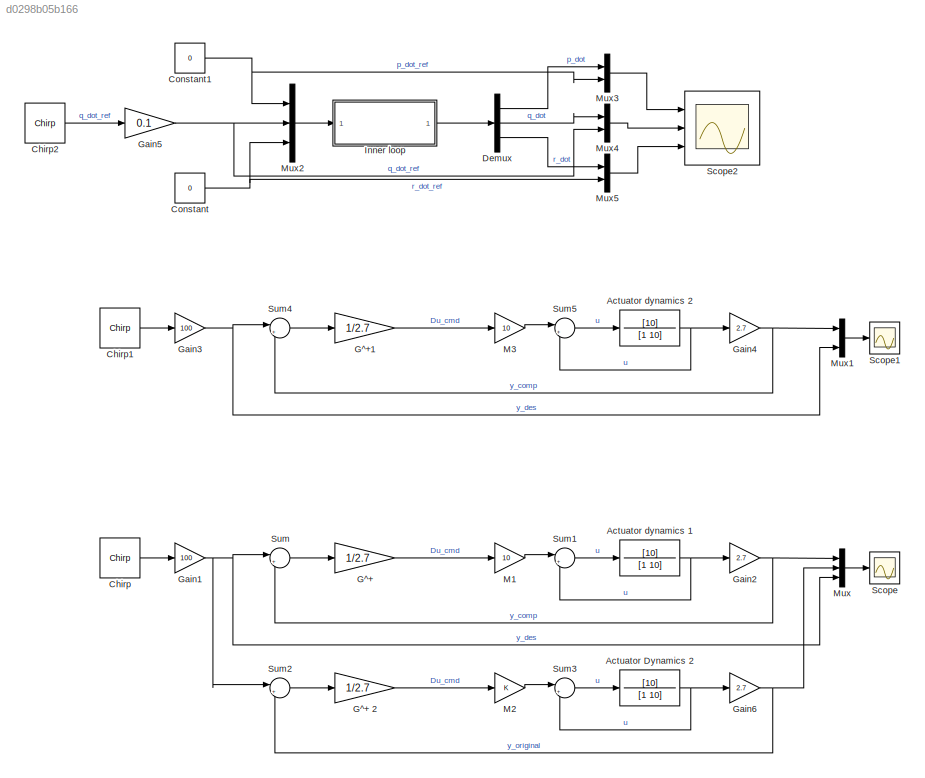
MODEL slx_d0298b05b166
KIND model
CONFIG AbsTol = auto
CONFIG EnableMultiTasking = off
CONFIG FixedStep = auto
CONFIG MaxStep = auto
CONFIG MinStep = auto
CONFIG RelTol = 1e-3
CONFIG SampleTimeConstraint = Unconstrained
CONFIG SolverName = VariableStepAuto
CONFIG StartTime = 0.0
CONFIG StopTime = 10
BLOCK [TransferFcn] Actuator Dynamics 2
  Denominator = [1 10]
  Numerator = [10]
BLOCK [TransferFcn] Actuator dynamics 1
  Denominator = [1 10]
  Numerator = [10]
BLOCK [TransferFcn] Actuator dynamics 2
  Denominator = [1 10]
  Numerator = [10]
BLOCK [Reference] Chirp  REF=dspsrcs4/Chirp
  Ports = [0, 1]
  SourceBlock = dspsrcs4/Chirp
  SourceProductBaseCode = DS
  SourceType = Chirp
BLOCK [Reference] Chirp1  REF=dspsrcs4/Chirp
  Ports = [0, 1]
  SourceBlock = dspsrcs4/Chirp
  SourceProductBaseCode = DS
  SourceType = Chirp
BLOCK [Reference] Chirp2  REF=dspsrcs4/Chirp
  Ports = [0, 1]
  SourceBlock = dspsrcs4/Chirp
  SourceProductBaseCode = DS
  SourceType = Chirp
BLOCK [Constant] Constant
  Value = 0
BLOCK [Constant] Constant1
  Value = 0
BLOCK [Demux] Demux
  Outputs = 3
  Ports = [1, 3]
BLOCK [Gain] G^+
  Gain = 1/2.7
BLOCK [Gain] G^+ 2
  Gain = 1/2.7
BLOCK [Gain] G^+1
  Gain = 1/2.7
BLOCK [Gain] Gain1
  Gain = 100
BLOCK [Gain] Gain2
  Gain = 2.7
BLOCK [Gain] Gain3
  Gain = 100
BLOCK [Gain] Gain4
  Gain = 2.7
BLOCK [Gain] Gain5
  Gain = 0.1
BLOCK [Gain] Gain6
  Gain = 2.7
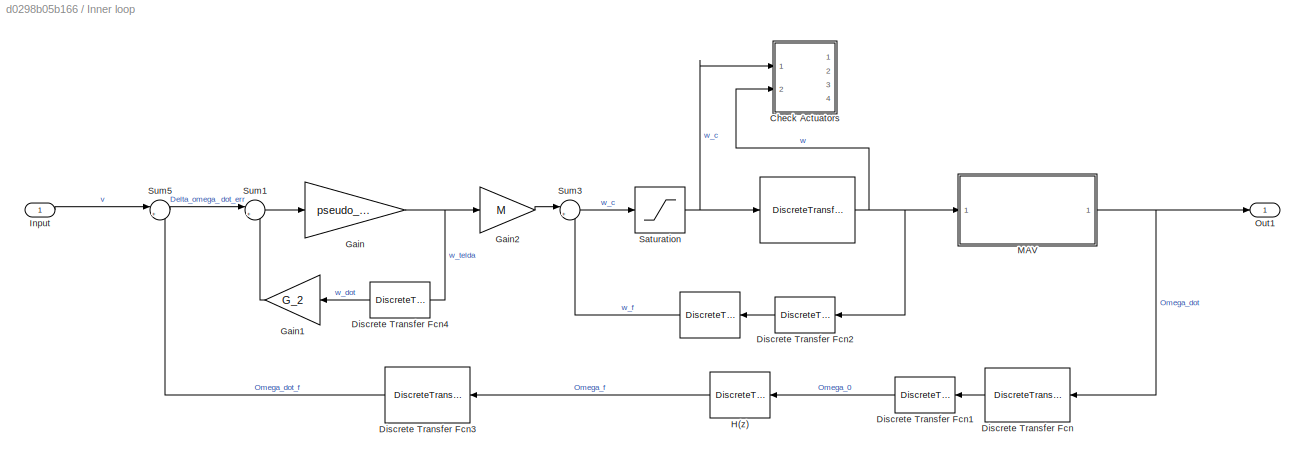
BLOCK [SubSystem] Inner loop
  Ports = [1, 1]
  RequestExecContextInheritance = off
BLOCK [DiscreteTransferFcn] Inner loop/ 
  DenCoefDataTypeStr = int16
  Denominator = H_z_den
  InputPortMap = u0
  Numerator = H_z_num
  Ports = [1, 1]
BLOCK [DiscreteTransferFcn] Inner loop/  
  DenCoefDataTypeStr = int16
  Denominator = mot_den
  InputPortMap = u0
  Numerator = mot_num
  Ports = [1, 1]
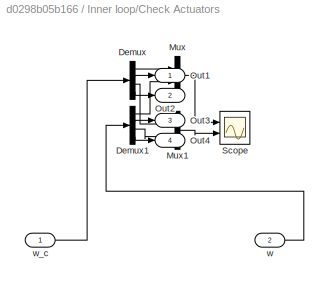
BLOCK [SubSystem] Inner loop/Check Actuators
  Ports = [2, 4]
  RequestExecContextInheritance = off
BLOCK [Demux] Inner loop/Check Actuators/Demux
  Ports = [1, 4]
BLOCK [Demux] Inner loop/Check Actuators/Demux1
  Ports = [1, 4]
BLOCK [Mux] Inner loop/Check Actuators/Mux
  DisplayOption = bar
  Inputs = 2
  Ports = [2, 1]
BLOCK [Mux] Inner loop/Check Actuators/Mux1
  DisplayOption = bar
  Inputs = 2
  Ports = [2, 1]
BLOCK [Outport] Inner loop/Check Actuators/Out1
BLOCK [Outport] Inner loop/Check Actuators/Out2
  Port = 2
BLOCK [Outport] Inner loop/Check Actuators/Out3
  Port = 3
BLOCK [Outport] Inner loop/Check Actuators/Out4
  Port = 4
BLOCK [Scope] Inner loop/Check Actuators/Scope
  Floating = off
  NumInputPorts = 2
  Ports = [2]
  ScopeSpecificationString = Simulink.scopes.TimeScopeBlockCfg('CurrentConfiguration', extmgr.ConfigurationSet(extmgr.Configuration('Core','General UI',true),extmgr.Configuration('Core','Source UI',true),extmgr.Configuration('Sources','WiredSimulink',true,'DataLoggingVariableName','ScopeData3'),extmgr.Configuration('Visuals','Time Domain',true,'SerializedDisplays',{struct('MinYLimReal','-0.79905','MaxYLimReal','7.19143','YLab...<+2061ch>
BLOCK [Inport] Inner loop/Check Actuators/w
  Port = 2
BLOCK [Inport] Inner loop/Check Actuators/w_c
BLOCK [DiscreteTransferFcn] Inner loop/Discrete Transfer Fcn
  Denominator = [1 -1]
  InputPortMap = u0
  NameLocation = top
  Numerator = [Ts 0]
  Ports = [1, 1]
BLOCK [DiscreteTransferFcn] Inner loop/Discrete Transfer Fcn1
  Denominator = [1 0]
  InputPortMap = u0
  NameLocation = top
  Ports = [1, 1]
BLOCK [DiscreteTransferFcn] Inner loop/Discrete Transfer Fcn2
  Denominator = [1 0]
  InputPortMap = u0
  NameLocation = top
  Ports = [1, 1]
BLOCK [DiscreteTransferFcn] Inner loop/Discrete Transfer Fcn3
  Denominator = [Ts 0]
  InputPortMap = u0
  Numerator = [1 -1]
  Ports = [1, 1]
BLOCK [DiscreteTransferFcn] Inner loop/Discrete Transfer Fcn4
  Denominator = [1 0]
  InputPortMap = u0
  NameLocation = top
  Ports = [1, 1]
BLOCK [Gain] Inner loop/Gain
  Gain = pseudo_g12
  Multiplication = Matrix(K*u)
BLOCK [Gain] Inner loop/Gain1
  Gain = G_2
  Multiplication = Matrix(K*u)
  NameLocation = top
BLOCK [Gain] Inner loop/Gain2
  Gain = M
BLOCK [DiscreteTransferFcn] Inner loop/H(z)
  DenCoefDataTypeStr = int16
  Denominator = H_z_den
  InputPortMap = u0
  Numerator = H_z_num
  Ports = [1, 1]
BLOCK [Inport] Inner loop/Input
  PortDimensions = 3
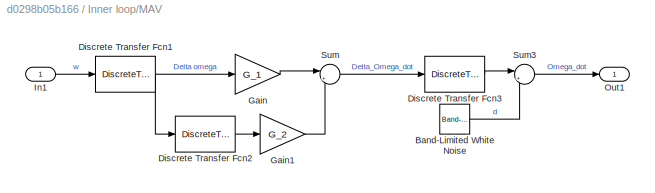
BLOCK [SubSystem] Inner loop/MAV
  Ports = [1, 1]
  RequestExecContextInheritance = off
BLOCK [Reference] Inner loop/MAV/Band-Limited White Noise  REF=simulink/Sources/Band-Limited
White Noise
  Ports = [0, 1]
  SourceBlock = simulink/Sources/Band-Limited\nWhite Noise
  SourceProductBaseCode = SL
  SourceType = Band-Limited White Noise.
BLOCK [DiscreteTransferFcn] Inner loop/MAV/Discrete Transfer Fcn1
  Denominator = [1 0]
  InputPortMap = u0
  Numerator = [1 -1]
  Ports = [1, 1]
BLOCK [DiscreteTransferFcn] Inner loop/MAV/Discrete Transfer Fcn2
  Denominator = [1 0]
  InputPortMap = u0
  Numerator = [1 -1]
  Ports = [1, 1]
BLOCK [DiscreteTransferFcn] Inner loop/MAV/Discrete Transfer Fcn3
  Denominator = [1 -1]
  InputPortMap = u0
  Numerator = [1 0]
  Ports = [1, 1]
BLOCK [Gain] Inner loop/MAV/Gain
  Gain = G_1
  Multiplication = Matrix(K*u)
BLOCK [Gain] Inner loop/MAV/Gain1
  Gain = G_2
  Multiplication = Matrix(K*u)
BLOCK [Inport] Inner loop/MAV/In1
  PortDimensions = 4
BLOCK [Outport] Inner loop/MAV/Out1
  PortDimensions = 3
BLOCK [Sum] Inner loop/MAV/Sum
  Inputs = |++
  Ports = [2, 1]
BLOCK [Sum] Inner loop/MAV/Sum3
  Inputs = |++
  Ports = [2, 1]
BLOCK [Outport] Inner loop/Out1
  PortDimensions = 3
BLOCK [Saturate] Inner loop/Saturation
  LowerLimit = 0
  UpperLimit = 150*Hz2rads
BLOCK [Sum] Inner loop/Sum1
  Inputs = |+-
  Ports = [2, 1]
BLOCK [Sum] Inner loop/Sum3
  Inputs = |++
  Ports = [2, 1]
BLOCK [Sum] Inner loop/Sum5
  Inputs = |+-
  Ports = [2, 1]
BLOCK [Gain] M1
  Gain = 10
BLOCK [Gain] M2
BLOCK [Gain] M3
  Gain = 10
BLOCK [Mux] Mux
  DisplayOption = bar
  Inputs = 3
  Ports = [3, 1]
BLOCK [Mux] Mux1
  DisplayOption = bar
  Inputs = 3
  Ports = [3, 1]
BLOCK [Mux] Mux2
  DisplayOption = bar
  Inputs = 3
  Ports = [3, 1]
BLOCK [Mux] Mux3
  DisplayOption = bar
  Inputs = 2
  Ports = [2, 1]
BLOCK [Mux] Mux4
  DisplayOption = bar
  Inputs = 2
  Ports = [2, 1]
BLOCK [Mux] Mux5
  DisplayOption = bar
  Inputs = 2
  Ports = [2, 1]
BLOCK [Scope] Scope
  Floating = off
  NumInputPorts = 1
  Ports = [1]
  ScopeSpecificationString = Simulink.scopes.TimeScopeBlockCfg('CurrentConfiguration', extmgr.ConfigurationSet(extmgr.Configuration('Core','General UI',true),extmgr.Configuration('Core','Source UI',true),extmgr.Configuration('Sources','WiredSimulink',true),extmgr.Configuration('Visuals','Time Domain',true,'SerializedDisplays',{struct('MinYLimReal','-125.00000','MaxYLimReal','125.00000','YLabelReal','','MinYLimMag',' 0.00000',...<+1433ch>
BLOCK [Scope] Scope1
  Floating = off
  NumInputPorts = 1
  Ports = [1]
  ScopeSpecificationString = Simulink.scopes.TimeScopeBlockCfg('CurrentConfiguration', extmgr.ConfigurationSet(extmgr.Configuration('Core','General UI',true),extmgr.Configuration('Core','Source UI',true),extmgr.Configuration('Sources','WiredSimulink',true,'DataLoggingVariableName','ScopeData1'),extmgr.Configuration('Visuals','Time Domain',true,'SerializedDisplays',{struct('MinYLimReal','-125.00000','MaxYLimReal','125.00000','...<+1471ch>
BLOCK [Scope] Scope2
  Floating = off
  NumInputPorts = 3
  Ports = [3]
  ScopeSpecificationString = Simulink.scopes.TimeScopeBlockCfg('CurrentConfiguration', extmgr.ConfigurationSet(extmgr.Configuration('Core','General UI',true),extmgr.Configuration('Core','Source UI',true),extmgr.Configuration('Sources','WiredSimulink',true,'DataLoggingVariableName','ScopeData2'),extmgr.Configuration('Visuals','Time Domain',true,'SerializedDisplays',{struct('MinYLimReal','-0.29838','MaxYLimReal','0.32508','YLab...<+2797ch>
BLOCK [Sum] Sum
  Inputs = |+-
  Ports = [2, 1]
BLOCK [Sum] Sum1
  Inputs = |++
  Ports = [2, 1]
BLOCK [Sum] Sum2
  Inputs = |+-
  Ports = [2, 1]
BLOCK [Sum] Sum3
  Inputs = |++
  Ports = [2, 1]
BLOCK [Sum] Sum4
  Inputs = |+-
  Ports = [2, 1]
BLOCK [Sum] Sum5
  Inputs = |++
  Ports = [2, 1]
NET Actuator Dynamics 2:1 -> Gain6:1, Sum3:2
NET Actuator dynamics 1:1 -> Gain2:1, Sum1:2
NET Actuator dynamics 2:1 -> Gain4:1, Sum5:2
LINE Chirp1:1 -> Gain3:1
LINE Chirp2:1 -> Gain5:1
LINE Chirp:1 -> Gain1:1
NET Constant1:1 -> Mux2:1, Mux3:2
NET Constant:1 -> Mux2:3, Mux5:2
LINE Demux:1 -> Mux3:1
LINE Demux:2 -> Mux4:1
LINE Demux:3 -> Mux5:1
LINE G^+ 2:1 -> M2:1
LINE G^+1:1 -> M3:1
LINE G^+:1 -> M1:1
NET Gain1:1 -> Mux:3, Sum2:1, Sum:1
NET Gain2:1 -> Mux:1, Sum:2
NET Gain3:1 -> Mux1:3, Sum4:1
NET Gain4:1 -> Mux1:1, Sum4:2
NET Gain5:1 -> Mux2:2, Mux4:2
NET Gain6:1 -> Mux:2, Sum2:2
NET Inner loop/  :1 -> Inner loop/Check Actuators:2, Inner loop/Discrete Transfer Fcn2:1, Inner loop/MAV:1
LINE Inner loop/ :1 -> Inner loop/Sum3:2
LINE Inner loop/Check Actuators/Demux1:1 -> Inner loop/Check Actuators/Mux:2
LINE Inner loop/Check Actuators/Demux1:2 -> Inner loop/Check Actuators/Out3:1
LINE Inner loop/Check Actuators/Demux1:3 -> Inner loop/Check Actuators/Mux1:2
LINE Inner loop/Check Actuators/Demux1:4 -> Inner loop/Check Actuators/Out4:1
LINE Inner loop/Check Actuators/Demux:1 -> Inner loop/Check Actuators/Mux:1
LINE Inner loop/Check Actuators/Demux:2 -> Inner loop/Check Actuators/Out1:1
LINE Inner loop/Check Actuators/Demux:3 -> Inner loop/Check Actuators/Mux1:1
LINE Inner loop/Check Actuators/Demux:4 -> Inner loop/Check Actuators/Out2:1
LINE Inner loop/Check Actuators/Mux1:1 -> Inner loop/Check Actuators/Scope:2
LINE Inner loop/Check Actuators/Mux:1 -> Inner loop/Check Actuators/Scope:1
LINE Inner loop/Check Actuators/w:1 -> Inner loop/Check Actuators/Demux1:1
LINE Inner loop/Check Actuators/w_c:1 -> Inner loop/Check Actuators/Demux:1
LINE Inner loop/Discrete Transfer Fcn1:1 -> Inner loop/H(z):1
LINE Inner loop/Discrete Transfer Fcn2:1 -> Inner loop/ :1
LINE Inner loop/Discrete Transfer Fcn3:1 -> Inner loop/Sum5:2
LINE Inner loop/Discrete Transfer Fcn4:1 -> Inner loop/Gain1:1
LINE Inner loop/Discrete Transfer Fcn:1 -> Inner loop/Discrete Transfer Fcn1:1
LINE Inner loop/Gain1:1 -> Inner loop/Sum1:2
LINE Inner loop/Gain2:1 -> Inner loop/Sum3:1
NET Inner loop/Gain:1 -> Inner loop/Discrete Transfer Fcn4:1, Inner loop/Gain2:1
LINE Inner loop/H(z):1 -> Inner loop/Discrete Transfer Fcn3:1
LINE Inner loop/Input:1 -> Inner loop/Sum5:1
LINE Inner loop/MAV/Band-Limited White Noise:1 -> Inner loop/MAV/Sum3:2
NET Inner loop/MAV/Discrete Transfer Fcn1:1 -> Inner loop/MAV/Discrete Transfer Fcn2:1, Inner loop/MAV/Gain:1
LINE Inner loop/MAV/Discrete Transfer Fcn2:1 -> Inner loop/MAV/Gain1:1
LINE Inner loop/MAV/Discrete Transfer Fcn3:1 -> Inner loop/MAV/Sum3:1
LINE Inner loop/MAV/Gain1:1 -> Inner loop/MAV/Sum:2
LINE Inner loop/MAV/Gain:1 -> Inner loop/MAV/Sum:1
LINE Inner loop/MAV/In1:1 -> Inner loop/MAV/Discrete Transfer Fcn1:1
LINE Inner loop/MAV/Sum3:1 -> Inner loop/MAV/Out1:1
LINE Inner loop/MAV/Sum:1 -> Inner loop/MAV/Discrete Transfer Fcn3:1
NET Inner loop/MAV:1 -> Inner loop/Discrete Transfer Fcn:1, Inner loop/Out1:1
NET Inner loop/Saturation:1 -> Inner loop/  :1, Inner loop/Check Actuators:1
LINE Inner loop/Sum1:1 -> Inner loop/Gain:1
LINE Inner loop/Sum3:1 -> Inner loop/Saturation:1
LINE Inner loop/Sum5:1 -> Inner loop/Sum1:1
LINE Inner loop:1 -> Demux:1
LINE M1:1 -> Sum1:1
LINE M2:1 -> Sum3:1
LINE M3:1 -> Sum5:1
LINE Mux1:1 -> Scope1:1
LINE Mux2:1 -> Inner loop:1
LINE Mux3:1 -> Scope2:1
LINE Mux4:1 -> Scope2:2
LINE Mux5:1 -> Scope2:3
LINE Mux:1 -> Scope:1
LINE Sum1:1 -> Actuator dynamics 1:1
LINE Sum2:1 -> G^+ 2:1
LINE Sum3:1 -> Actuator Dynamics 2:1
LINE Sum4:1 -> G^+1:1
LINE Sum5:1 -> Actuator dynamics 2:1
LINE Sum:1 -> G^+:1
note: NET lines group one-source signal fan-out (src -> all destinations, sorted); 1:1 wires keep LINE
